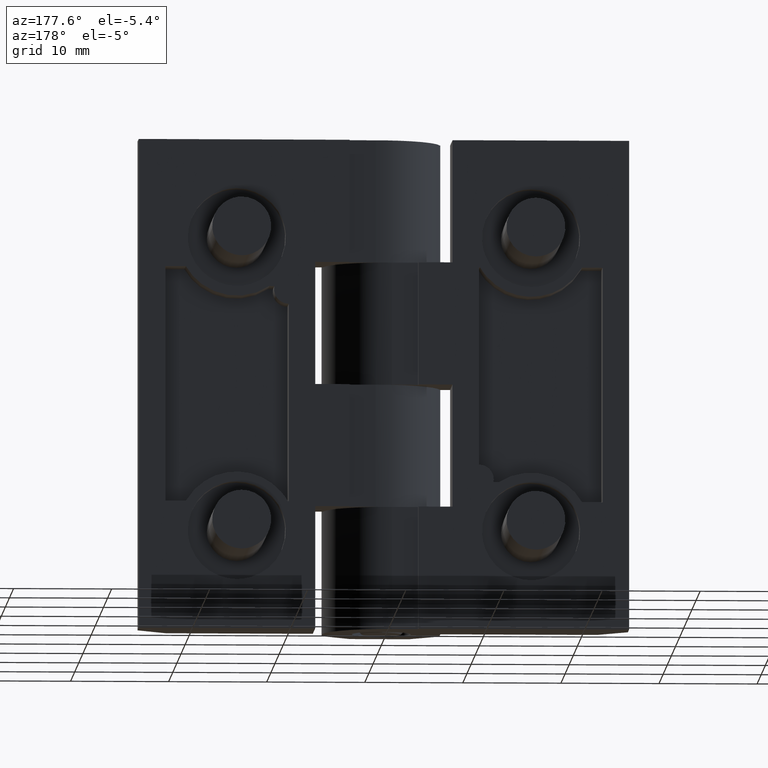
[diagram: clean part render]
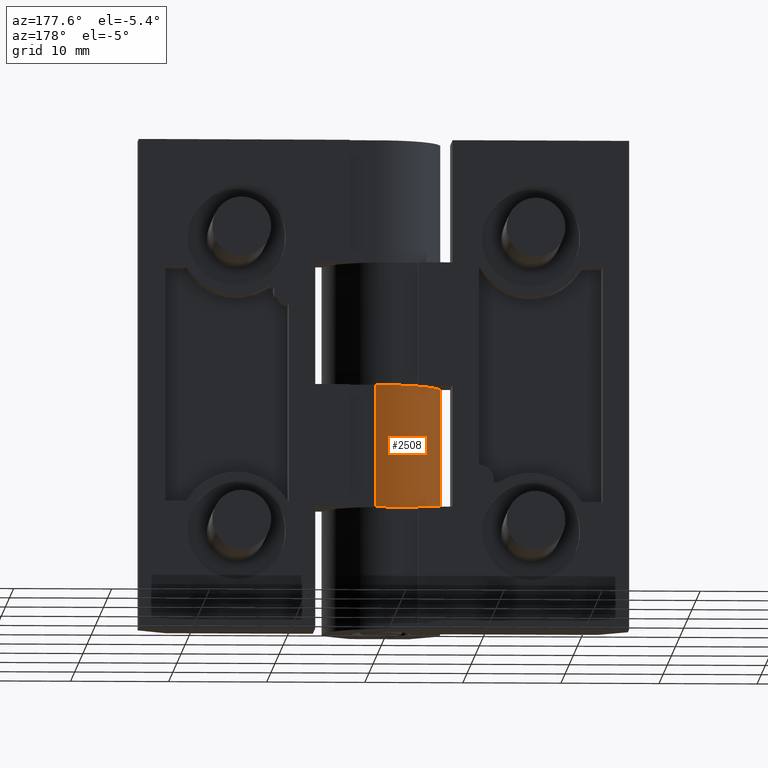
[diagram: same view with one face highlighted and labeled with its STEP entity id]
A machine part, auxiliary view. The second image highlights one B-rep face of the part: STEP entity #2508.
In plain terms, the highlighted face is a freeform B-spline surface patch.
Its self-contained STEP definition (entity closure, byte-faithful):
#2025=CARTESIAN_POINT('',(0.849528285644179,6.0,25.0));
#2026=VERTEX_POINT('',#2025);
#2032=CARTESIAN_POINT('',(-5.999999999999930,0.500000000000000,25.0));
#2033=VERTEX_POINT('',#2032);
#2034=CARTESIAN_POINT('',(0.849528285644181,5.999999999999992,25.0));
#2035=CARTESIAN_POINT('',(-5.096069190510887,6.389367130919820,25.0));
#2036=CARTESIAN_POINT('',(-5.999999999999926,0.500000000000001,25.0));
#2044=(BOUNDED_CURVE()B_SPLINE_CURVE(2,(#2034,#2035,#2036),.UNSPECIFIED.,.F.,.U.)CURVE()GEOMETRIC_REPRESENTATION_ITEM()QUASI_UNIFORM_CURVE()RATIONAL_B_SPLINE_CURVE((1.0,0.737154140200784,1.0))REPRESENTATION_ITEM(''));
#2045=EDGE_CURVE('',#2026,#2033,#2044,.T.);
#2222=CARTESIAN_POINT('',(-5.999999999999930,0.500000000000000,12.500000000000000));
#2223=VERTEX_POINT('',#2222);
#2229=CARTESIAN_POINT('',(0.849528285644179,6.0,12.500000000000000));
#2230=VERTEX_POINT('',#2229);
#2231=CARTESIAN_POINT('',(-5.999999999999926,0.499999999999999,12.500000000000000));
#2232=CARTESIAN_POINT('',(-5.096069190510892,6.389367130919818,12.500000000000000));
#2233=CARTESIAN_POINT('',(0.849528285644179,5.999999999999992,12.500000000000000));
#2241=(BOUNDED_CURVE()B_SPLINE_CURVE(2,(#2231,#2232,#2233),.UNSPECIFIED.,.F.,.U.)CURVE()GEOMETRIC_REPRESENTATION_ITEM()QUASI_UNIFORM_CURVE()RATIONAL_B_SPLINE_CURVE((1.0,0.737154140200783,1.0))REPRESENTATION_ITEM(''));
#2242=EDGE_CURVE('',#2223,#2230,#2241,.T.);
#2476=CARTESIAN_POINT('',(0.849528285644179,6.0,25.0));
#2477=CARTESIAN_POINT('',(0.849528285644179,6.0,12.500000000000000));
#2478=QUASI_UNIFORM_CURVE('',1,(#2476,#2477),.UNSPECIFIED.,.F.,.U.);
#2479=EDGE_CURVE('',#2026,#2230,#2478,.T.);
#2484=CARTESIAN_POINT('',(1.129687649840188,5.975556207669357,25.312500000000000));
#2485=CARTESIAN_POINT('',(1.129687649840188,5.975556207669357,12.179687500000000));
#2486=CARTESIAN_POINT('',(-5.485286844305430,6.697205007271539,25.312499999999993));
#2487=CARTESIAN_POINT('',(-5.485286844305430,6.697205007271539,12.179687499999998));
#2488=CARTESIAN_POINT('',(-6.051649205394923,0.067129726846326,25.312500000000004));
#2489=CARTESIAN_POINT('',(-6.051649205394923,0.067129726846326,12.179687500000000));
#2497=(BOUNDED_SURFACE()B_SPLINE_SURFACE(1,2,((#2484,#2486,#2488),(#2485,#2487,#2489)),.UNSPECIFIED.,.F.,.F.,.U.)B_SPLINE_SURFACE_WITH_KNOTS((2,2),(3,3),(0.0,13.132812500000011),(0.0,10.948525790439350),.UNSPECIFIED.)GEOMETRIC_REPRESENTATION_ITEM()RATIONAL_B_SPLINE_SURFACE(((1.0,0.697084617204287,0.995186064456975),(1.0,0.697084617204287,0.995186064456975)))REPRESENTATION_ITEM('')SURFACE());
#2498=ORIENTED_EDGE('',*,*,#2045,.F.);
#2499=ORIENTED_EDGE('',*,*,#2479,.T.);
#2500=ORIENTED_EDGE('',*,*,#2242,.F.);
#2501=CARTESIAN_POINT('',(-5.999999999999930,0.500000000000000,25.0));
#2502=CARTESIAN_POINT('',(-5.999999999999930,0.500000000000000,12.500000000000000));
#2503=QUASI_UNIFORM_CURVE('',1,(#2501,#2502),.UNSPECIFIED.,.F.,.U.);
#2504=EDGE_CURVE('',#2033,#2223,#2503,.T.);
#2505=ORIENTED_EDGE('',*,*,#2504,.F.);
#2506=EDGE_LOOP('',(#2498,#2499,#2500,#2505));
#2507=FACE_OUTER_BOUND('',#2506,.T.);
#2508=ADVANCED_FACE('',(#2507),#2497,.T.);